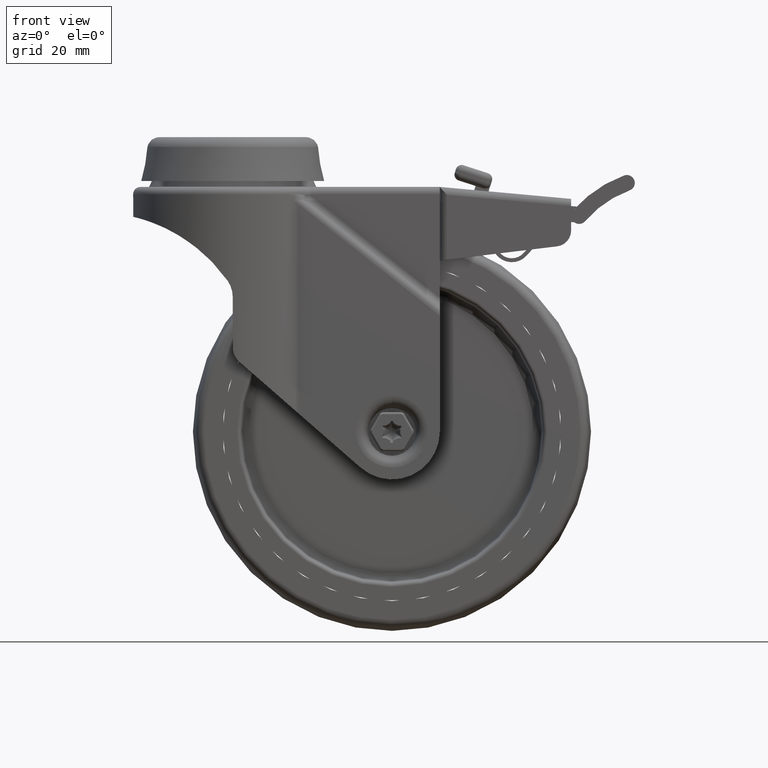
[diagram: clean part render]
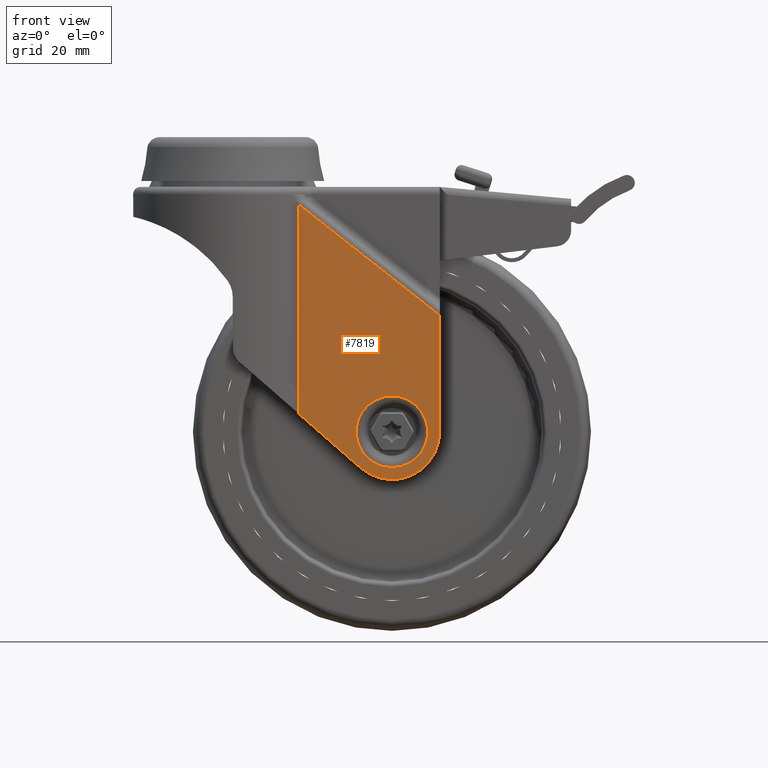
[diagram: same view with one face highlighted and labeled with its STEP entity id]
A machine part, front view. The second image highlights one B-rep face of the part: STEP entity #7819.
In plain terms, the highlighted planar face has unit normal (-0, -1, 0).
Its self-contained STEP definition (entity closure, byte-faithful):
#373=FACE_BOUND('',#1404,.T.);
#477=PLANE('',#8544);
#919=FACE_OUTER_BOUND('',#1403,.T.);
#1403=EDGE_LOOP('',(#5958,#5959,#5960,#5961,#5962));
#1404=EDGE_LOOP('',(#5963));
#1939=LINE('',#12181,#2509);
#1942=LINE('',#12210,#2512);
#1990=LINE('',#12779,#2560);
#1992=LINE('',#12785,#2562);
#2509=VECTOR('',#9714,999.999999999999);
#2512=VECTOR('',#9725,1000.);
#2560=VECTOR('',#9967,999.999999999999);
#2562=VECTOR('',#9975,1000.);
#3026=CIRCLE('',#8513,9.);
#3037=CIRCLE('',#8545,12.);
#3497=VERTEX_POINT('',#12126);
#3499=VERTEX_POINT('',#12180);
#3505=VERTEX_POINT('',#12208);
#3570=VERTEX_POINT('',#12577);
#3594=VERTEX_POINT('',#12777);
#3595=VERTEX_POINT('',#12783);
#4336=EDGE_CURVE('',#3497,#3499,#1939,.T.);
#4343=EDGE_CURVE('',#3505,#3497,#1942,.T.);
#4427=EDGE_CURVE('',#3570,#3570,#3026,.T.);
#4468=EDGE_CURVE('',#3505,#3594,#1990,.T.);
#4470=EDGE_CURVE('',#3594,#3595,#3037,.T.);
#4471=EDGE_CURVE('',#3499,#3595,#1992,.F.);
#5958=ORIENTED_EDGE('',*,*,#4468,.T.);
#5959=ORIENTED_EDGE('',*,*,#4470,.T.);
#5960=ORIENTED_EDGE('',*,*,#4471,.F.);
#5961=ORIENTED_EDGE('',*,*,#4336,.F.);
#5962=ORIENTED_EDGE('',*,*,#4343,.F.);
#5963=ORIENTED_EDGE('',*,*,#4427,.F.);
#7819=ADVANCED_FACE('',(#919,#373),#477,.T.);
#8513=AXIS2_PLACEMENT_3D('',#12579,#9888,#9889);
#8544=AXIS2_PLACEMENT_3D('',#12782,#9971,#9972);
#8545=AXIS2_PLACEMENT_3D('',#12784,#9973,#9974);
#9714=DIRECTION('',(0.785897087180759,-3.30055061524995E-16,-0.618357314471818));
#9725=DIRECTION('',(0.,0.,1.));
#9888=DIRECTION('center_axis',(-4.19972369040072E-16,-1.,0.));
#9889=DIRECTION('ref_axis',(-1.,4.19972369040072E-16,0.));
#9967=DIRECTION('',(0.753226396756521,-3.16334274269353E-16,-0.657761351273536));
#9971=DIRECTION('center_axis',(-4.19972369040072E-16,-1.,0.));
#9972=DIRECTION('ref_axis',(-1.,4.19972369040072E-16,0.));
#9973=DIRECTION('center_axis',(-4.19972369040072E-16,-1.,0.));
#9974=DIRECTION('ref_axis',(-1.,4.19972369040072E-16,0.));
#9975=DIRECTION('',(0.,0.,1.));
#12126=CARTESIAN_POINT('',(16.5236194582176,-19.3,-16.8769512224118));
#12180=CARTESIAN_POINT('',(52.,-19.3,-44.7903762201959));
#12181=CARTESIAN_POINT('',(30.2339896012534,-19.3,-27.6645057258586));
#12208=CARTESIAN_POINT('',(16.523619458218,-19.3,-69.4293910961812));
#12210=CARTESIAN_POINT('',(16.523619458218,-19.3,-12.5));
#12577=CARTESIAN_POINT('',(40.,-19.3,-65.));
#12579=CARTESIAN_POINT('Origin',(40.,-19.3,-74.));
#12777=CARTESIAN_POINT('',(32.0000000000004,-19.3,-82.9442719099996));
#12779=CARTESIAN_POINT('',(7.96377719275622,-19.3,-61.9544361032822));
#12782=CARTESIAN_POINT('Origin',(35.4777370716854,-19.3,-12.5));
#12783=CARTESIAN_POINT('',(52.,-19.3,-74.));
#12784=CARTESIAN_POINT('Origin',(40.,-19.3,-74.));
#12785=CARTESIAN_POINT('',(52.,-19.3,-12.5));